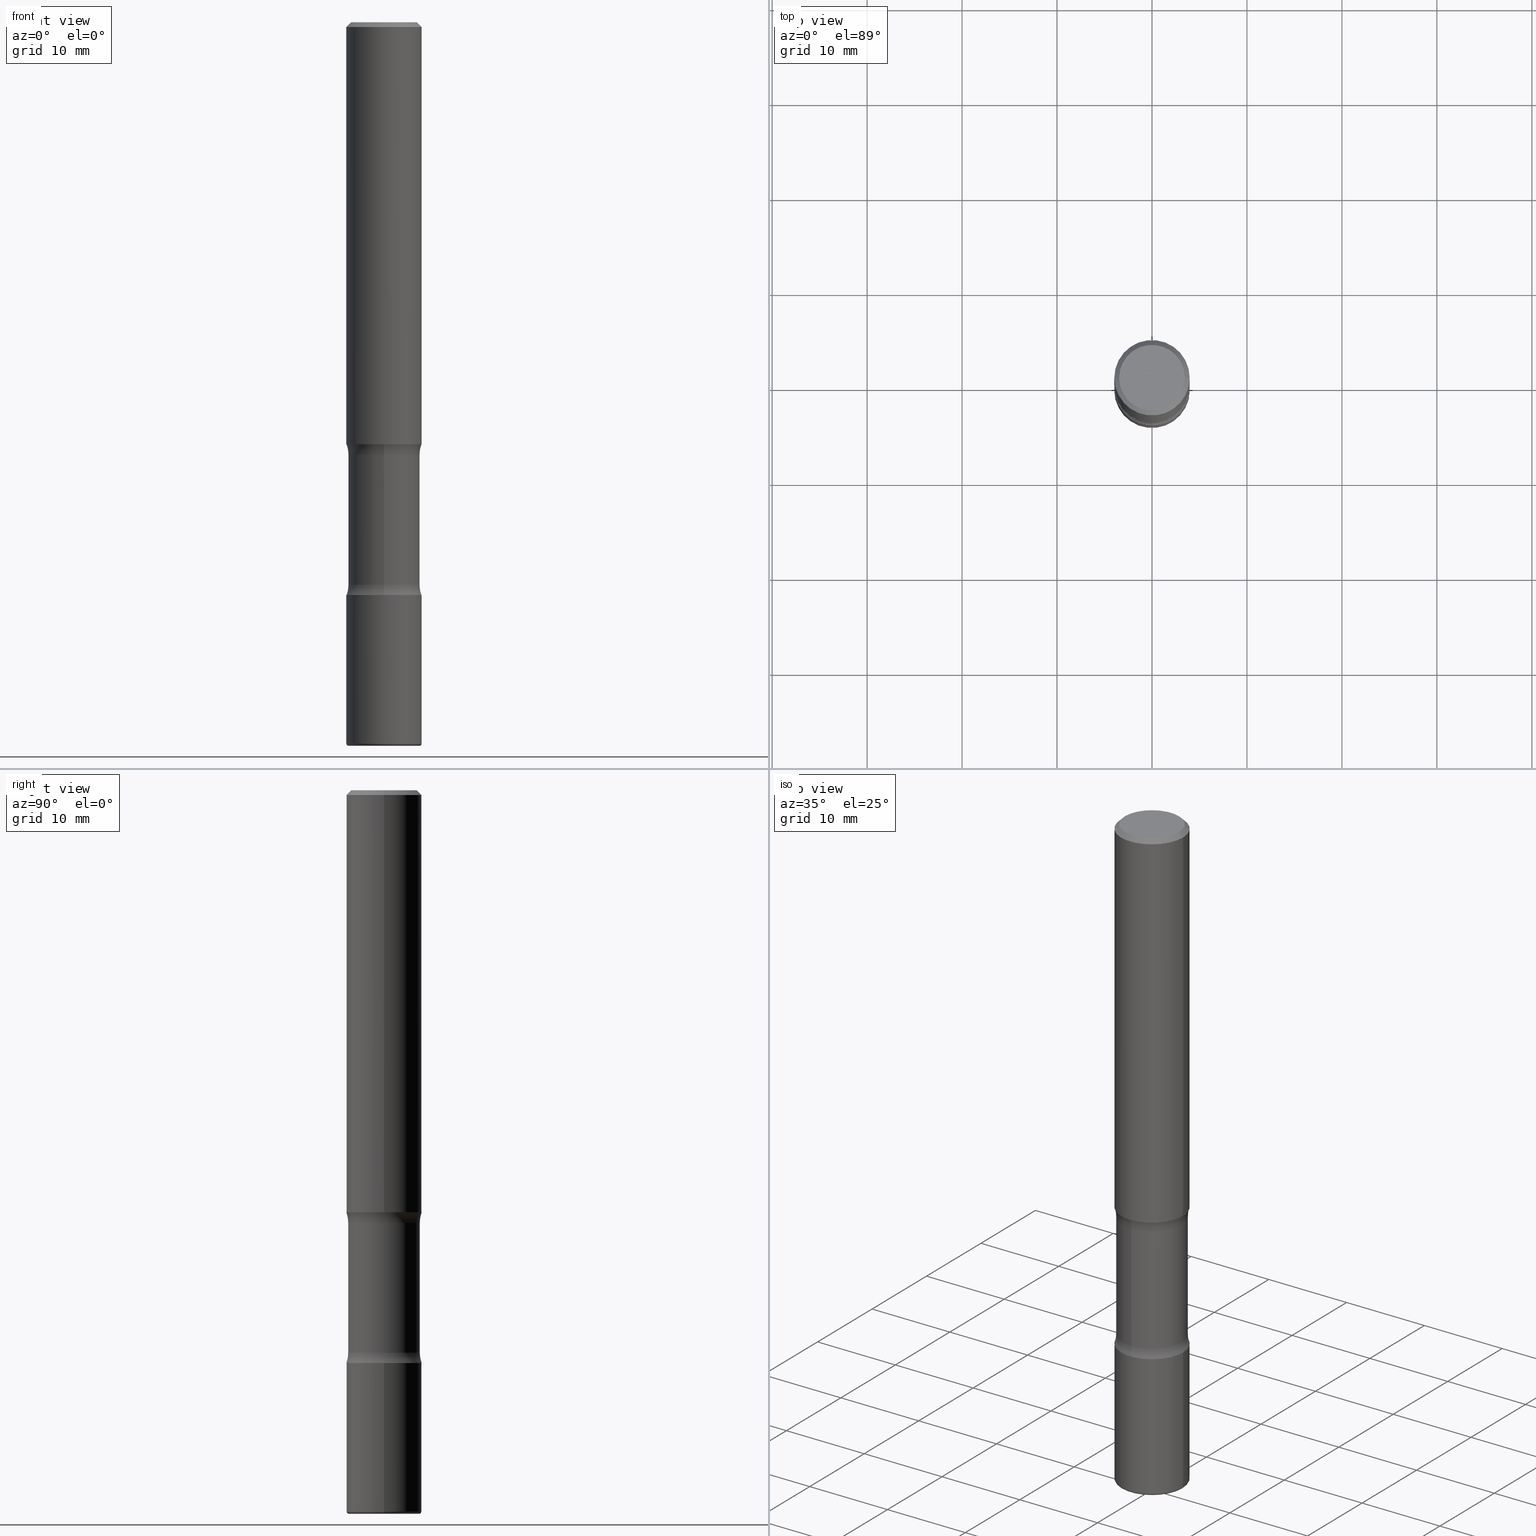
[diagram: canonical four-view strip — front | top / right | iso, engineering-drawing reading convention]
A machine part, canonical four-view strip (front | top / right | iso — engineering-drawing reading convention). The complete STEP part file that produces these views, byte-faithful:
ISO-10303-21;
HEADER;
FILE_DESCRIPTION (( 'STEP AP203' ),
    '1' );
FILE_NAME ('37811.STEP',
    '2024-03-02T00:26:25',
    ( '' ),
    ( '' ),
    'SwSTEP 2.0',
    'SolidWorks 2023',
    '' );
FILE_SCHEMA (( 'CONFIG_CONTROL_DESIGN' ));
ENDSEC;

DATA;
#1 = VERTEX_POINT ( 'NONE', #132 ) ;
#2 = DIRECTION ( 'NONE',  ( 2.523926373086038410E-29, -3.379125637513666367E-15, -1.000000000000000000 ) ) ;
#3 = ORIENTED_EDGE ( 'NONE', *, *, #169, .T. ) ;
#4 = CIRCLE ( 'NONE', #14, 0.1462500000000001021 ) ;
#5 = APPROVAL_PERSON_ORGANIZATION ( #45, #89, #177 ) ;
#6 = DIRECTION ( 'NONE',  ( 6.982962677686265922E-15, 1.000000000000000000, -3.379125637513666761E-15 ) ) ;
#7 = VERTEX_POINT ( 'NONE', #357 ) ;
#8 = VERTEX_POINT ( 'NONE', #50 ) ;
#9 = PLANE ( 'NONE',  #422 ) ;
#10 = ORIENTED_EDGE ( 'NONE', *, *, #334, .F. ) ;
#11 = ADVANCED_FACE ( 'NONE', ( #267 ), #397, .T. ) ;
#12 = DIRECTION ( 'NONE',  ( -2.445468806185136597E-29, 3.491481338843145583E-15, 1.000000000000000000 ) ) ;
#13 = ADVANCED_FACE ( 'NONE', ( #444 ), #309, .F. ) ;
#14 = AXIS2_PLACEMENT_3D ( 'NONE', #407, #174, #530 ) ;
#15 = APPROVAL_STATUS ( 'not_yet_approved' ) ;
#16 = ORIENTED_EDGE ( 'NONE', *, *, #265, .T. ) ;
#17 = CARTESIAN_POINT ( 'NONE',  ( 0.1562500000000000833, -7.201180261363985422E-15, -1.750000000000000444 ) ) ;
#18 = FACE_OUTER_BOUND ( 'NONE', #172, .T. ) ;
#19 = CYLINDRICAL_SURFACE ( 'NONE', #443, 0.1484375000000000000 ) ;
#20 = ADVANCED_FACE ( 'NONE', ( #230 ), #358, .T. ) ;
#21 = CIRCLE ( 'NONE', #327, 0.1362499999999998712 ) ;
#22 = AXIS2_PLACEMENT_3D ( 'NONE', #151, #114, #363 ) ;
#23 = DIRECTION ( 'NONE',  ( 2.523926373086038130E-29, -3.379125637513666367E-15, -1.000000000000000000 ) ) ;
#24 = AXIS2_PLACEMENT_3D ( 'NONE', #510, #319, #508 ) ;
#25 = FACE_OUTER_BOUND ( 'NONE', #254, .T. ) ;
#26 = DIRECTION ( 'NONE',  ( -2.523926373086038130E-29, 3.379125637513666367E-15, 1.000000000000000000 ) ) ;
#27 = CARTESIAN_POINT ( 'NONE',  ( -0.1562500000000000833, -1.979737960251025472E-15, -1.750000000000000444 ) ) ;
#28 = EDGE_CURVE ( 'NONE', #324, #432, #30, .T. ) ;
#29 = DIRECTION ( 'NONE',  ( -6.982962677686265922E-15, -1.000000000000000000, 0.000000000000000000 ) ) ;
#30 = CIRCLE ( 'NONE', #395, 0.1484375000000000278 ) ;
#31 = CARTESIAN_POINT ( 'NONE',  ( -1.071952812151760391E-15, -0.1562500000000063560, -1.750000000000000000 ) ) ;
#32 = ORIENTED_EDGE ( 'NONE', *, *, #301, .F. ) ;
#33 = DIMENSIONAL_EXPONENTS ( 1.000000000000000000, 0.000000000000000000, 0.000000000000000000, 0.000000000000000000, 0.000000000000000000, 0.000000000000000000, 0.000000000000000000 ) ;
#34 = APPROVAL ( #199, 'UNSPECIFIED' ) ;
#35 = CIRCLE ( 'NONE', #415, 0.1562500000000001110 ) ;
#36 = AXIS2_PLACEMENT_3D ( 'NONE', #377, #2, #290 ) ;
#37 = ORIENTED_EDGE ( 'NONE', *, *, #399, .F. ) ;
#38 = CALENDAR_DATE ( 2024, 1, 3 ) ;
#39 = ORIENTED_EDGE ( 'NONE', *, *, #169, .F. ) ;
#40 = ORIENTED_EDGE ( 'NONE', *, *, #482, .F. ) ;
#41 = APPROVAL_STATUS ( 'not_yet_approved' ) ;
#42 = EDGE_LOOP ( 'NONE', ( #287, #428, #10, #116 ) ) ;
#43 = AXIS2_PLACEMENT_3D ( 'NONE', #222, #306, #52 ) ;
#44 = CIRCLE ( 'NONE', #546, 0.1362499999999998712 ) ;
#45 = PERSON_AND_ORGANIZATION ( #493, #351 ) ;
#46 = EDGE_LOOP ( 'NONE', ( #90, #115 ) ) ;
#47 = EDGE_CURVE ( 'NONE', #384, #168, #21, .T. ) ;
#48 = DIRECTION ( 'NONE',  ( 1.000000000000000000, -6.982962677686266711E-15, 4.876176775795936353E-29 ) ) ;
#49 = DIRECTION ( 'NONE',  ( -1.000000000000000000, 6.982962677686265922E-15, -4.876176775795935793E-29 ) ) ;
#50 = CARTESIAN_POINT ( 'NONE',  ( 1.091087918388522561E-15, 0.1562499999999940048, -1.750000000000001110 ) ) ;
#51 = ADVANCED_FACE ( 'NONE', ( #429 ), #195, .T. ) ;
#52 = DIRECTION ( 'NONE',  ( 6.982962677686266711E-15, 1.000000000000000000, -3.496765431890253370E-15 ) ) ;
#53 = DIRECTION ( 'NONE',  ( 1.000000000000000000, -6.982962677686265133E-15, 0.000000000000000000 ) ) ;
#54 = AXIS2_PLACEMENT_3D ( 'NONE', #492, #266, #442 ) ;
#55 = AXIS2_PLACEMENT_3D ( 'NONE', #264, #88, #487 ) ;
#56 = DIRECTION ( 'NONE',  ( 1.000000000000000000, -6.982962677686265922E-15, 4.876176775795935793E-29 ) ) ;
#57 = EDGE_CURVE ( 'NONE', #481, #515, #87, .T. ) ;
#58 = CARTESIAN_POINT ( 'NONE',  ( -0.1562499999999998612, 1.021258291611615284E-15, -0.02000000000000000042 ) ) ;
#59 = CIRCLE ( 'NONE', #130, 0.1562500000000000833 ) ;
#60 = DIRECTION ( 'NONE',  ( 6.982962677686265922E-15, 1.000000000000000000, -3.379125637513666761E-15 ) ) ;
#61 = ADVANCED_FACE ( 'NONE', ( #18 ), #413, .T. ) ;
#62 = DIRECTION ( 'NONE',  ( 6.982962677686266711E-15, 1.000000000000000000, -3.680805717779217644E-15 ) ) ;
#63 = CARTESIAN_POINT ( 'NONE',  ( 7.336406418555412032E-29, -1.047444401652943951E-14, -3.000000000000000888 ) ) ;
#64 = ADVANCED_FACE ( 'NONE', ( #175 ), #554, .F. ) ;
#65 = CARTESIAN_POINT ( 'NONE',  ( 7.385442397868472267E-29, -1.040422170319851125E-14, -2.999999999999999556 ) ) ;
#66 = AXIS2_PLACEMENT_3D ( 'NONE', #473, #438, #48 ) ;
#67 = LOCAL_TIME ( 19, 26, 25.00000000000000000, #229 ) ;
#68 = DIRECTION ( 'NONE',  ( 2.523926373086038410E-29, -3.379125637513666367E-15, -1.000000000000000000 ) ) ;
#69 =( LENGTH_UNIT ( ) NAMED_UNIT ( * ) SI_UNIT ( $, .METRE. ) );
#70 = DIRECTION ( 'NONE',  ( 2.523926373086038410E-29, -3.379125637513666367E-15, -1.000000000000000000 ) ) ;
#71 = APPLICATION_PROTOCOL_DEFINITION ( 'international standard', 'config_control_design', 1994, #490 ) ;
#72 = FACE_OUTER_BOUND ( 'NONE', #92, .T. ) ;
#73 = PERSON_AND_ORGANIZATION_ROLE ( 'design_owner' ) ;
#74 = ORIENTED_EDGE ( 'NONE', *, *, #247, .T. ) ;
#75 = CLOSED_SHELL ( 'NONE', ( #311, #227, #51, #345, #20, #207 ) ) ;
#76 = CC_DESIGN_PERSON_AND_ORGANIZATION_ASSIGNMENT ( #524, #73, ( #536 ) ) ;
#77 = CIRCLE ( 'NONE', #556, 0.1250000000000000000 ) ;
#78 = ORIENTED_EDGE ( 'NONE', *, *, #470, .T. ) ;
#79 = ORIENTED_EDGE ( 'NONE', *, *, #356, .F. ) ;
#80 = EDGE_CURVE ( 'NONE', #261, #515, #308, .T. ) ;
#81 = ORIENTED_EDGE ( 'NONE', *, *, #47, .F. ) ;
#82 = CARTESIAN_POINT ( 'NONE',  ( 5.698202263795362163E-29, -8.145282435205020267E-15, -2.331501840915390478 ) ) ;
#83 = ORIENTED_EDGE ( 'NONE', *, *, #495, .T. ) ;
#84 = PERSON_AND_ORGANIZATION_ROLE ( 'creator' ) ;
#85 = CARTESIAN_POINT ( 'NONE',  ( 0.000000000000000000, 0.000000000000000000, 0.000000000000000000 ) ) ;
#86 = CARTESIAN_POINT ( 'NONE',  ( -1.875917421265609774E-15, -0.2734375000000063838, -1.793498159084609522 ) ) ;
#87 = CIRCLE ( 'NONE', #150, 0.1562499999999998612 ) ;
#88 = DIRECTION ( 'NONE',  ( -2.445468806185136597E-29, 3.491481338843145583E-15, 1.000000000000000000 ) ) ;
#89 = APPROVAL ( #15, 'UNSPECIFIED' ) ;
#90 = ORIENTED_EDGE ( 'NONE', *, *, #105, .F. ) ;
#91 = DIRECTION ( 'NONE',  ( -2.445468806185136597E-29, 3.491481338843145583E-15, 1.000000000000000000 ) ) ;
#92 = EDGE_LOOP ( 'NONE', ( #16, #212, #32, #126 ) ) ;
#93 = EDGE_LOOP ( 'NONE', ( #341, #161, #390, #354 ) ) ;
#94 = VECTOR ( 'NONE', #534, 39.37007874015748143 ) ;
#95 = AXIS2_PLACEMENT_3D ( 'NONE', #505, #70, #104 ) ;
#96 = DIRECTION ( 'NONE',  ( -2.445468806185136597E-29, 3.491481338843145583E-15, 1.000000000000000000 ) ) ;
#97 = DIRECTION ( 'NONE',  ( 1.000000000000000000, -6.982962677686265133E-15, 0.000000000000000000 ) ) ;
#98 = CARTESIAN_POINT ( 'NONE',  ( 0.1562499999999998612, -1.141782438928663922E-15, -0.02000000000000000042 ) ) ;
#99 = AXIS2_PLACEMENT_3D ( 'NONE', #100, #317, #419 ) ;
#100 = CARTESIAN_POINT ( 'NONE',  ( -0.1462500000000000744, -9.400360452091861401E-15, -2.990000000000000657 ) ) ;
#101 = EDGE_CURVE ( 'NONE', #432, #8, #163, .T. ) ;
#102 = UNCERTAINTY_MEASURE_WITH_UNIT (LENGTH_MEASURE( 1.000000000000000082E-05 ), #249, 'distance_accuracy_value', 'NONE');
#103 = CARTESIAN_POINT ( 'NONE',  ( -1.018355171544137761E-15, -0.1484375000000104083, -2.999999999999999112 ) ) ;
#104 = DIRECTION ( 'NONE',  ( 6.982962677686265133E-15, 1.000000000000000000, -3.680805717779217644E-15 ) ) ;
#105 = EDGE_CURVE ( 'NONE', #430, #437, #498, .T. ) ;
#106 = DIRECTION ( 'NONE',  ( -2.445468806185136597E-29, 3.491481338843145583E-15, 1.000000000000000000 ) ) ;
#107 = FACE_OUTER_BOUND ( 'NONE', #215, .T. ) ;
#108 = CIRCLE ( 'NONE', #529, 0.1562500000000001388 ) ;
#109 = CC_DESIGN_SECURITY_CLASSIFICATION ( #110, ( #417 ) ) ;
#110 = SECURITY_CLASSIFICATION ( '', '', #173 ) ;
#111 = APPROVAL_DATE_TIME ( #559, #34 ) ;
#112 = ORIENTED_EDGE ( 'NONE', *, *, #276, .T. ) ;
#113 = CARTESIAN_POINT ( 'NONE',  ( 1.091087918388537746E-15, 0.1562499999999918121, -2.375000000000000888 ) ) ;
#114 = DIRECTION ( 'NONE',  ( -2.445468806185136597E-29, 3.491481338843145583E-15, 1.000000000000000000 ) ) ;
#115 = ORIENTED_EDGE ( 'NONE', *, *, #186, .F. ) ;
#116 = ORIENTED_EDGE ( 'NONE', *, *, #128, .F. ) ;
#117 = DIRECTION ( 'NONE',  ( 6.982962677686266711E-15, 1.000000000000000000, -3.496765431890253370E-15 ) ) ;
#118 = ORIENTED_EDGE ( 'NONE', *, *, #101, .T. ) ;
#119 = ADVANCED_FACE ( 'NONE', ( #467 ), #355, .F. ) ;
#120 = AXIS2_PLACEMENT_3D ( 'NONE', #86, #398, #179 ) ;
#121 = LOCAL_TIME ( 19, 26, 25.00000000000000000, #553 ) ;
#122 = EDGE_LOOP ( 'NONE', ( #518, #251, #297, #198 ) ) ;
#123 = ORIENTED_EDGE ( 'NONE', *, *, #399, .T. ) ;
#124 = ORIENTED_EDGE ( 'NONE', *, *, #446, .F. ) ;
#125 = COORDINATED_UNIVERSAL_TIME_OFFSET ( 5, 0, .BEHIND. ) ;
#126 = ORIENTED_EDGE ( 'NONE', *, *, #80, .F. ) ;
#127 = DIRECTION ( 'NONE',  ( -1.000000000000000000, 6.982962677686266711E-15, 0.000000000000000000 ) ) ;
#128 = EDGE_CURVE ( 'NONE', #430, #517, #462, .T. ) ;
#129 = PLANE ( 'NONE',  #520 ) ;
#130 = AXIS2_PLACEMENT_3D ( 'NONE', #491, #91, #53 ) ;
#131 = DATE_AND_TIME ( #219, #329 ) ;
#132 = CARTESIAN_POINT ( 'NONE',  ( 0.1562500000000001110, -9.383356098140953236E-15, -2.375000000000000444 ) ) ;
#133 = PERSON_AND_ORGANIZATION ( #493, #351 ) ;
#134 = CC_DESIGN_DATE_AND_TIME_ASSIGNMENT ( #480, #431, ( #393 ) ) ;
#135 = CARTESIAN_POINT ( 'NONE',  ( 0.000000000000000000, 0.000000000000000000, 0.000000000000000000 ) ) ;
#136 = DIRECTION ( 'NONE',  ( -6.982962677686265922E-15, -1.000000000000000000, 0.000000000000000000 ) ) ;
#137 = VECTOR ( 'NONE', #374, 39.37007874015748143 ) ;
#138 = PERSON_AND_ORGANIZATION ( #493, #351 ) ;
#139 = AXIS2_PLACEMENT_3D ( 'NONE', #452, #371, #149 ) ;
#140 = ORIENTED_EDGE ( 'NONE', *, *, #57, .T. ) ;
#141 = DIRECTION ( 'NONE',  ( 6.982962677686266711E-15, 1.000000000000000000, -3.680805717779217644E-15 ) ) ;
#142 = DIRECTION ( 'NONE',  ( -1.000000000000000000, 6.982962677686265922E-15, -4.883557194083112340E-29 ) ) ;
#143 = EDGE_CURVE ( 'NONE', #472, #253, #281, .T. ) ;
#144 = CARTESIAN_POINT ( 'NONE',  ( -0.1562500000000001110, -8.255675666821583237E-15, -2.375000000000000444 ) ) ;
#145 = DIRECTION ( 'NONE',  ( 1.000000000000000000, -6.860497997771530774E-15, 4.842174840124134267E-29 ) ) ;
#146 = VECTOR ( 'NONE', #192, 39.37007874015748143 ) ;
#147 = DIRECTION ( 'NONE',  ( 0.7071067811865473507, -7.319954787623256045E-15, -0.7071067811865476838 ) ) ;
#148 = DIRECTION ( 'NONE',  ( -2.445468806185136597E-29, 3.491481338843145583E-15, 1.000000000000000000 ) ) ;
#149 = DIRECTION ( 'NONE',  ( 6.982962677686265922E-15, 1.000000000000000000, -3.496765431890254553E-15 ) ) ;
#150 = AXIS2_PLACEMENT_3D ( 'NONE', #305, #12, #262 ) ;
#151 = CARTESIAN_POINT ( 'NONE',  ( 7.311951730493559366E-29, -1.043952920314100786E-14, -2.990000000000000657 ) ) ;
#152 = AXIS2_PLACEMENT_3D ( 'NONE', #65, #241, #62 ) ;
#153 = AXIS2_PLACEMENT_3D ( 'NONE', #82, #160, #333 ) ;
#154 = ORIENTED_EDGE ( 'NONE', *, *, #550, .T. ) ;
#155 = LINE ( 'NONE', #201, #137 ) ;
#156 = EDGE_CURVE ( 'NONE', #555, #517, #108, .T. ) ;
#157 = ORIENTED_EDGE ( 'NONE', *, *, #320, .F. ) ;
#158 = ORIENTED_EDGE ( 'NONE', *, *, #404, .T. ) ;
#159 = ADVANCED_FACE ( 'NONE', ( #270 ), #19, .T. ) ;
#160 = DIRECTION ( 'NONE',  ( 2.523926373086038410E-29, -3.379125637513666367E-15, -1.000000000000000000 ) ) ;
#161 = ORIENTED_EDGE ( 'NONE', *, *, #28, .T. ) ;
#162 = EDGE_LOOP ( 'NONE', ( #124, #478, #288, #300 ) ) ;
#163 = CIRCLE ( 'NONE', #497, 0.1250000000000000000 ) ;
#164 = AXIS2_PLACEMENT_3D ( 'NONE', #321, #68, #277 ) ;
#165 = CIRCLE ( 'NONE', #273, 0.1562500000000001665 ) ;
#166 = EDGE_LOOP ( 'NONE', ( #485, #158, #340, #40 ) ) ;
#167 = APPROVAL_DATE_TIME ( #421, #502 ) ;
#168 = VERTEX_POINT ( 'NONE', #314 ) ;
#169 = EDGE_CURVE ( 'NONE', #392, #261, #486, .T. ) ;
#170 = ORIENTED_EDGE ( 'NONE', *, *, #28, .F. ) ;
#171 = CARTESIAN_POINT ( 'NONE',  ( -1.045153991847949569E-15, -0.1484375000000081601, -2.331501840915390034 ) ) ;
#172 = EDGE_LOOP ( 'NONE', ( #157, #81, #208, #140 ) ) ;
#173 = SECURITY_CLASSIFICATION_LEVEL ( 'unclassified' ) ;
#174 = DIRECTION ( 'NONE',  ( -2.445468806185136597E-29, 3.491481338843145583E-15, 1.000000000000000000 ) ) ;
#175 = FACE_OUTER_BOUND ( 'NONE', #525, .T. ) ;
#176 = AXIS2_PLACEMENT_3D ( 'NONE', #535, #315, #501 ) ;
#177 = APPROVAL_ROLE ( '' ) ;
#178 = DIRECTION ( 'NONE',  ( -2.445468806185136597E-29, 3.491481338843145583E-15, 1.000000000000000000 ) ) ;
#179 = DIRECTION ( 'NONE',  ( 6.860497997771530774E-15, 1.000000000000000000, 0.000000000000000000 ) ) ;
#180 = CARTESIAN_POINT ( 'NONE',  ( 1.909403857179882138E-15, 0.2734374999999937272, -1.793498159084611077 ) ) ;
#181 = EDGE_CURVE ( 'NONE', #384, #481, #451, .T. ) ;
#182 = ORIENTED_EDGE ( 'NONE', *, *, #47, .T. ) ;
#183 = APPLICATION_CONTEXT ( 'configuration controlled 3d designs of mechanical parts and assemblies' ) ;
#184 = DIRECTION ( 'NONE',  ( 2.523926373086038410E-29, -3.379125637513666367E-15, -1.000000000000000000 ) ) ;
#185 = ORIENTED_EDGE ( 'NONE', *, *, #533, .F. ) ;
#186 = EDGE_CURVE ( 'NONE', #437, #430, #4, .T. ) ;
#187 = CC_DESIGN_APPROVAL ( #34, ( #393 ) ) ;
#188 = CARTESIAN_POINT ( 'NONE',  ( 5.807988414689700538E-29, -8.292268179752471696E-15, -2.375000000000000444 ) ) ;
#189 = PRODUCT_RELATED_PRODUCT_CATEGORY ( 'detail', '', ( #536 ) ) ;
#190 = CARTESIAN_POINT ( 'NONE',  ( -0.1362499999999998712, 9.863434782231840290E-16, -6.775751096333132877E-30 ) ) ;
#191 = DIRECTION ( 'NONE',  ( -6.982962677686266711E-15, -1.000000000000000000, 3.491481338843145583E-15 ) ) ;
#192 = DIRECTION ( 'NONE',  ( 2.523926373086038410E-29, -3.379125637513666367E-15, -1.000000000000000000 ) ) ;
#193 = TOROIDAL_SURFACE ( 'NONE', #55, 0.1462500000000000744, 0.01000000000000011470 ) ;
#194 = DIRECTION ( 'NONE',  ( 6.982962677686265922E-15, 1.000000000000000000, -3.379125637513666367E-15 ) ) ;
#195 = PLANE ( 'NONE',  #336 ) ;
#196 = CARTESIAN_POINT ( 'NONE',  ( 7.311951730493559366E-29, -1.043952920314100786E-14, -2.990000000000000657 ) ) ;
#197 = CARTESIAN_POINT ( 'NONE',  ( -1.071952812151744220E-15, -0.1562500000000084099, -2.375000000000000000 ) ) ;
#198 = ORIENTED_EDGE ( 'NONE', *, *, #408, .F. ) ;
#199 = APPROVAL_STATUS ( 'not_yet_approved' ) ;
#200 = CARTESIAN_POINT ( 'NONE',  ( 5.807988414689700538E-29, -8.292268179752471696E-15, -2.375000000000000444 ) ) ;
#201 = CARTESIAN_POINT ( 'NONE',  ( -0.1562499999999999722, 1.110223024625156343E-15, -7.685836078523288357E-30 ) ) ;
#202 = ADVANCED_BREP_SHAPE_REPRESENTATION ( '37811', ( #326, #537, #557, #228 ), #361 ) ;
#203 = CLOSED_SHELL ( 'NONE', ( #307, #459, #61, #214, #13, #11 ) ) ;
#204 = CARTESIAN_POINT ( 'NONE',  ( 4.230534431510926007E-29, -6.180314656306430561E-15, -1.750000000000000444 ) ) ;
#205 = AXIS2_PLACEMENT_3D ( 'NONE', #63, #412, #376 ) ;
#206 = APPROVAL_PERSON_ORGANIZATION ( #284, #502, #298 ) ;
#207 = ADVANCED_FACE ( 'NONE', ( #260 ), #9, .F. ) ;
#208 = ORIENTED_EDGE ( 'NONE', *, *, #181, .T. ) ;
#209 = DIRECTION ( 'NONE',  ( -2.445468806185136597E-29, 3.491481338843145583E-15, 1.000000000000000000 ) ) ;
#210 = ORIENTED_EDGE ( 'NONE', *, *, #156, .T. ) ;
#211 = CARTESIAN_POINT ( 'NONE',  ( 0.1562500000000001665, -1.153061712152948940E-14, -2.990000000000000657 ) ) ;
#212 = ORIENTED_EDGE ( 'NONE', *, *, #283, .T. ) ;
#213 = COORDINATED_UNIVERSAL_TIME_OFFSET ( 5, 0, .BEHIND. ) ;
#214 = ADVANCED_FACE ( 'NONE', ( #527 ), #129, .F. ) ;
#215 = EDGE_LOOP ( 'NONE', ( #170, #112, #74, #378 ) ) ;
#216 = AXIS2_PLACEMENT_3D ( 'NONE', #330, #209, #513 ) ;
#217 = CC_DESIGN_APPROVAL ( #502, ( #417 ) ) ;
#218 = ORIENTED_EDGE ( 'NONE', *, *, #325, .F. ) ;
#219 = CALENDAR_DATE ( 2024, 1, 3 ) ;
#220 = DIRECTION ( 'NONE',  ( 2.438088387897960049E-29, -3.491481338843145188E-15, -1.000000000000000000 ) ) ;
#221 = ORIENTED_EDGE ( 'NONE', *, *, #247, .F. ) ;
#222 = CARTESIAN_POINT ( 'NONE',  ( 4.230534431510926007E-29, -6.180314656306430561E-15, -1.750000000000000444 ) ) ;
#223 = CC_DESIGN_PERSON_AND_ORGANIZATION_ASSIGNMENT ( #133, #84, ( #417 ) ) ;
#224 = FACE_OUTER_BOUND ( 'NONE', #42, .T. ) ;
#225 = CARTESIAN_POINT ( 'NONE',  ( 0.1562499999999999722, -1.091087918388478976E-15, 7.619026212181148976E-30 ) ) ;
#226 = VECTOR ( 'NONE', #439, 39.37007874015748143 ) ;
#227 = ADVANCED_FACE ( 'NONE', ( #224 ), #193, .T. ) ;
#228 = AXIS2_PLACEMENT_3D ( 'NONE', #337, #285, #468 ) ;
#229 = COORDINATED_UNIVERSAL_TIME_OFFSET ( 5, 0, .BEHIND. ) ;
#230 = FACE_OUTER_BOUND ( 'NONE', #232, .T. ) ;
#231 = DIRECTION ( 'NONE',  ( -6.982962677686265922E-15, -1.000000000000000000, 3.379125637513666367E-15 ) ) ;
#232 = EDGE_LOOP ( 'NONE', ( #381, #210, #484, #471 ) ) ;
#233 = ORIENTED_EDGE ( 'NONE', *, *, #265, .F. ) ;
#234 = CARTESIAN_POINT ( 'NONE',  ( 4.338252820539708503E-29, -6.330261553535058631E-15, -1.793498159084610410 ) ) ;
#235 = EDGE_CURVE ( 'NONE', #432, #7, #441, .T. ) ;
#236 = AXIS2_PLACEMENT_3D ( 'NONE', #445, #488, #127 ) ;
#237 = CIRCLE ( 'NONE', #405, 0.1562500000000001110 ) ;
#238 = TOROIDAL_SURFACE ( 'NONE', #24, 0.2734375000000000000, 0.1250000000000000000 ) ;
#239 = DIRECTION ( 'NONE',  ( -0.7071067811865473507, 2.468850131082255088E-15, -0.7071067811865476838 ) ) ;
#240 = CARTESIAN_POINT ( 'NONE',  ( 1.909403857179895154E-15, 0.2734374999999918399, -2.331501840915391366 ) ) ;
#241 = DIRECTION ( 'NONE',  ( 2.523926373086038410E-29, -3.379125637513666367E-15, -1.000000000000000000 ) ) ;
#242 = CARTESIAN_POINT ( 'NONE',  ( -0.1562500000000001388, 1.110223024625157526E-15, -7.685836078523296765E-30 ) ) ;
#243 = CARTESIAN_POINT ( 'NONE',  ( 0.000000000000000000, 0.000000000000000000, 0.000000000000000000 ) ) ;
#244 = AXIS2_PLACEMENT_3D ( 'NONE', #243, #106, #551 ) ;
#245 = DIRECTION ( 'NONE',  ( -2.445468806185136597E-29, 3.491481338843145583E-15, 1.000000000000000000 ) ) ;
#246 = PERSON_AND_ORGANIZATION ( #493, #351 ) ;
#247 = EDGE_CURVE ( 'NONE', #448, #8, #367, .T. ) ;
#248 = EDGE_LOOP ( 'NONE', ( #182, #123 ) ) ;
#249 =( CONVERSION_BASED_UNIT ( 'INCH', #373 ) LENGTH_UNIT ( ) NAMED_UNIT ( #33 ) );
#250 = AXIS2_PLACEMENT_3D ( 'NONE', #455, #370, #509 ) ;
#251 = ORIENTED_EDGE ( 'NONE', *, *, #143, .T. ) ;
#252 = PERSON_AND_ORGANIZATION_ROLE ( 'creator' ) ;
#253 = VERTEX_POINT ( 'NONE', #171 ) ;
#254 = EDGE_LOOP ( 'NONE', ( #185, #221 ) ) ;
#255 = CARTESIAN_POINT ( 'NONE',  ( 4.338252820539708503E-29, -6.330261553535058631E-15, -1.793498159084610410 ) ) ;
#256 = EDGE_LOOP ( 'NONE', ( #426, #476 ) ) ;
#257 = ORIENTED_EDGE ( 'NONE', *, *, #325, .T. ) ;
#258 = TOROIDAL_SURFACE ( 'NONE', #22, 0.1462500000000000744, 0.01000000000000011470 ) ;
#259 = ORIENTED_EDGE ( 'NONE', *, *, #495, .F. ) ;
#260 = FACE_OUTER_BOUND ( 'NONE', #256, .T. ) ;
#261 = VERTEX_POINT ( 'NONE', #17 ) ;
#262 = DIRECTION ( 'NONE',  ( 1.000000000000000000, -6.982962677686266711E-15, 0.000000000000000000 ) ) ;
#263 = PERSON_AND_ORGANIZATION_ROLE ( 'design_supplier' ) ;
#264 = CARTESIAN_POINT ( 'NONE',  ( 7.311951730493559366E-29, -1.043952920314100786E-14, -2.990000000000000657 ) ) ;
#265 = EDGE_CURVE ( 'NONE', #261, #392, #59, .T. ) ;
#266 = DIRECTION ( 'NONE',  ( 2.523926373086038410E-29, -3.379125637513666367E-15, -1.000000000000000000 ) ) ;
#267 = FACE_OUTER_BOUND ( 'NONE', #433, .T. ) ;
#268 = CIRCLE ( 'NONE', #164, 0.1484375000000000278 ) ;
#269 = CARTESIAN_POINT ( 'NONE',  ( 4.279570410823989605E-29, -6.110092342975506249E-15, -1.750000000000000444 ) ) ;
#270 = FACE_OUTER_BOUND ( 'NONE', #286, .T. ) ;
#271 = CARTESIAN_POINT ( 'NONE',  ( 0.1562500000000001388, -1.091087918388480160E-15, 7.619026212181157383E-30 ) ) ;
#272 = VECTOR ( 'NONE', #147, 39.37007874015748143 ) ;
#273 = AXIS2_PLACEMENT_3D ( 'NONE', #204, #383, #117 ) ;
#274 = DIRECTION ( 'NONE',  ( -2.445468806185136597E-29, 3.491481338843145583E-15, 1.000000000000000000 ) ) ;
#275 = DIRECTION ( 'NONE',  ( -2.445468806185136877E-29, 3.491481338843145188E-15, 1.000000000000000000 ) ) ;
#276 = EDGE_CURVE ( 'NONE', #324, #448, #375, .T. ) ;
#277 = DIRECTION ( 'NONE',  ( 6.982962677686265133E-15, 1.000000000000000000, -3.680805717779216855E-15 ) ) ;
#278 = CARTESIAN_POINT ( 'NONE',  ( 5.807988414689700538E-29, -8.292268179752471696E-15, -2.375000000000000444 ) ) ;
#279 = CARTESIAN_POINT ( 'NONE',  ( 0.1562499999999998612, -1.141782438928663922E-15, -0.02000000000000000042 ) ) ;
#280 = VECTOR ( 'NONE', #275, 39.37007874015748143 ) ;
#281 = CIRCLE ( 'NONE', #474, 0.1250000000000000000 ) ;
#282 = CARTESIAN_POINT ( 'NONE',  ( 1.036533522469098602E-15, 0.1484374999999936995, -1.793498159084610633 ) ) ;
#283 = EDGE_CURVE ( 'NONE', #392, #481, #155, .T. ) ;
#284 = PERSON_AND_ORGANIZATION ( #493, #351 ) ;
#285 = DIRECTION ( 'NONE',  ( 0.000000000000000000, 0.000000000000000000, 1.000000000000000000 ) ) ;
#286 = EDGE_LOOP ( 'NONE', ( #257, #78, #79, #424 ) ) ;
#287 = ORIENTED_EDGE ( 'NONE', *, *, #105, .T. ) ;
#288 = ORIENTED_EDGE ( 'NONE', *, *, #128, .T. ) ;
#289 = AXIS2_PLACEMENT_3D ( 'NONE', #494, #401, #56 ) ;
#290 = DIRECTION ( 'NONE',  ( 6.982962677686265922E-15, 1.000000000000000000, -3.496765431890254553E-15 ) ) ;
#291 = AXIS2_PLACEMENT_3D ( 'NONE', #500, #191, #450 ) ;
#292 = ORIENTED_EDGE ( 'NONE', *, *, #301, .T. ) ;
#293 = LOCAL_TIME ( 19, 26, 25.00000000000000000, #213 ) ;
#294 = DIRECTION ( 'NONE',  ( 6.982962677686265133E-15, 1.000000000000000000, -3.680805717779216855E-15 ) ) ;
#295 = CC_DESIGN_PERSON_AND_ORGANIZATION_ASSIGNMENT ( #138, #263, ( #417 ) ) ;
#296 = PERSON_AND_ORGANIZATION ( #493, #351 ) ;
#297 = ORIENTED_EDGE ( 'NONE', *, *, #523, .T. ) ;
#298 = APPROVAL_ROLE ( '' ) ;
#299 = ORIENTED_EDGE ( 'NONE', *, *, #80, .T. ) ;
#300 = ORIENTED_EDGE ( 'NONE', *, *, #156, .F. ) ;
#301 = EDGE_CURVE ( 'NONE', #515, #481, #434, .T. ) ;
#302 = CARTESIAN_POINT ( 'NONE',  ( 9.514286648347529716E-16, 0.1362499999999998712, -4.757143324173781621E-16 ) ) ;
#303 = TOROIDAL_SURFACE ( 'NONE', #454, 0.2734375000000000555, 0.1250000000000000000 ) ;
#304 = VERTEX_POINT ( 'NONE', #113 ) ;
#305 = CARTESIAN_POINT ( 'NONE',  ( 4.890937612370273159E-31, -6.982962677686291609E-17, -0.02000000000000000042 ) ) ;
#306 = DIRECTION ( 'NONE',  ( 2.523926373086038410E-29, -3.379125637513666367E-15, -1.000000000000000000 ) ) ;
#307 = ADVANCED_FACE ( 'NONE', ( #72 ), #332, .T. ) ;
#308 = LINE ( 'NONE', #225, #94 ) ;
#309 = PLANE ( 'NONE',  #289 ) ;
#310 = DIRECTION ( 'NONE',  ( 6.860497997771530774E-15, 1.000000000000000000, 0.000000000000000000 ) ) ;
#311 = ADVANCED_FACE ( 'NONE', ( #548 ), #368, .T. ) ;
#312 = AXIS2_PLACEMENT_3D ( 'NONE', #549, #23, #194 ) ;
#313 = AXIS2_PLACEMENT_3D ( 'NONE', #255, #466, #6 ) ;
#314 = CARTESIAN_POINT ( 'NONE',  ( 0.1362499999999998712, -1.038262645562517138E-15, 6.957025900226689470E-30 ) ) ;
#315 = DIRECTION ( 'NONE',  ( -2.445468806185136597E-29, 3.491481338843145583E-15, 1.000000000000000000 ) ) ;
#316 = CYLINDRICAL_SURFACE ( 'NONE', #152, 0.1484375000000000000 ) ;
#317 = DIRECTION ( 'NONE',  ( 7.105427357601001859E-15, 1.000000000000000000, -3.491481338843145583E-15 ) ) ;
#318 = CIRCLE ( 'NONE', #95, 0.1484375000000000000 ) ;
#319 = DIRECTION ( 'NONE',  ( 2.523926373086038410E-29, -3.379125637513666367E-15, -1.000000000000000000 ) ) ;
#320 = EDGE_CURVE ( 'NONE', #168, #515, #463, .T. ) ;
#321 = CARTESIAN_POINT ( 'NONE',  ( 4.340320582405264943E-29, -6.327300400853882778E-15, -1.793498159084609966 ) ) ;
#322 = LINE ( 'NONE', #103, #146 ) ;
#323 = FACE_OUTER_BOUND ( 'NONE', #122, .T. ) ;
#324 = VERTEX_POINT ( 'NONE', #372 ) ;
#325 = EDGE_CURVE ( 'NONE', #432, #324, #268, .T. ) ;
#326 = MANIFOLD_SOLID_BREP ( 'Body-Move/Copy2[1]', #75 ) ;
#327 = AXIS2_PLACEMENT_3D ( 'NONE', #85, #477, #410 ) ;
#328 = VECTOR ( 'NONE', #239, 39.37007874015748143 ) ;
#329 = LOCAL_TIME ( 19, 26, 25.00000000000000000, #394 ) ;
#330 = CARTESIAN_POINT ( 'NONE',  ( 4.890937612370273159E-31, -6.982962677686291609E-17, -0.02000000000000000042 ) ) ;
#331 = CARTESIAN_POINT ( 'NONE',  ( -0.1562500000000001665, -9.329306178515849742E-15, -2.990000000000000657 ) ) ;
#332 = CYLINDRICAL_SURFACE ( 'NONE', #66, 0.1562499999999999722 ) ;
#333 = DIRECTION ( 'NONE',  ( 6.982962677686265133E-15, 1.000000000000000000, -3.680805717779217644E-15 ) ) ;
#334 = EDGE_CURVE ( 'NONE', #517, #555, #338, .T. ) ;
#335 = EDGE_LOOP ( 'NONE', ( #83, #154 ) ) ;
#336 = AXIS2_PLACEMENT_3D ( 'NONE', #449, #350, #389 ) ;
#337 = CARTESIAN_POINT ( 'NONE',  ( 0.000000000000000000, 0.000000000000000000, 0.000000000000000000 ) ) ;
#338 = CIRCLE ( 'NONE', #359, 0.1562500000000001388 ) ;
#339 = CIRCLE ( 'NONE', #139, 0.1562500000000001110 ) ;
#340 = ORIENTED_EDGE ( 'NONE', *, *, #382, .F. ) ;
#341 = ORIENTED_EDGE ( 'NONE', *, *, #470, .F. ) ;
#342 = ORIENTED_EDGE ( 'NONE', *, *, #408, .T. ) ;
#343 = DIRECTION ( 'NONE',  ( -1.000000000000000000, 6.982962677686265922E-15, -4.876176775795935793E-29 ) ) ;
#344 = ORIENTED_EDGE ( 'NONE', *, *, #143, .F. ) ;
#345 = ADVANCED_FACE ( 'NONE', ( #420 ), #258, .T. ) ;
#346 = PERSON_AND_ORGANIZATION ( #493, #351 ) ;
#347 = CARTESIAN_POINT ( 'NONE',  ( 5.807988414689700538E-29, -8.292268179752471696E-15, -2.375000000000000444 ) ) ;
#348 = CIRCLE ( 'NONE', #99, 0.01000000000000013205 ) ;
#349 = ORIENTED_EDGE ( 'NONE', *, *, #57, .F. ) ;
#350 = DIRECTION ( 'NONE',  ( 2.438088387897960049E-29, -3.491481338843145188E-15, -1.000000000000000000 ) ) ;
#351 = ORGANIZATION ( 'UNSPECIFIED', 'UNSPECIFIED', '' ) ;
#352 = DIRECTION ( 'NONE',  ( 1.000000000000000000, -6.982962677686266711E-15, 4.876176775795936353E-29 ) ) ;
#353 = DIRECTION ( 'NONE',  ( -1.000000000000000000, 6.982962677686265922E-15, -4.883557194083112340E-29 ) ) ;
#354 = ORIENTED_EDGE ( 'NONE', *, *, #523, .F. ) ;
#355 = PLANE ( 'NONE',  #387 ) ;
#356 = EDGE_CURVE ( 'NONE', #7, #253, #318, .T. ) ;
#357 = CARTESIAN_POINT ( 'NONE',  ( 1.036533522469112013E-15, 0.1484374999999918399, -2.331501840915391366 ) ) ;
#358 = CYLINDRICAL_SURFACE ( 'NONE', #176, 0.1562500000000001388 ) ;
#359 = AXIS2_PLACEMENT_3D ( 'NONE', #196, #460, #416 ) ;
#360 = CC_DESIGN_APPROVAL ( #89, ( #110 ) ) ;
#361 =( GEOMETRIC_REPRESENTATION_CONTEXT ( 3 ) GLOBAL_UNCERTAINTY_ASSIGNED_CONTEXT ( ( #102 ) ) GLOBAL_UNIT_ASSIGNED_CONTEXT ( ( #249, #521, #475 ) ) REPRESENTATION_CONTEXT ( 'NONE', 'WORKASPACE' ) );
#362 = DIRECTION ( 'NONE',  ( 1.000000000000000000, -6.982962677686270655E-15, 0.000000000000000000 ) ) ;
#363 = DIRECTION ( 'NONE',  ( 1.000000000000000000, -6.982962677686265922E-15, 4.883557194083112340E-29 ) ) ;
#364 = LINE ( 'NONE', #242, #280 ) ;
#365 = ADVANCED_FACE ( 'NONE', ( #465 ), #316, .T. ) ;
#366 = CARTESIAN_POINT ( 'NONE',  ( -0.1562499999999998612, 1.021258291611615284E-15, -0.02000000000000000042 ) ) ;
#367 = CIRCLE ( 'NONE', #43, 0.1562500000000001665 ) ;
#368 = CYLINDRICAL_SURFACE ( 'NONE', #244, 0.1562500000000001388 ) ;
#369 = LOCAL_TIME ( 19, 26, 25.00000000000000000, #125 ) ;
#370 = DIRECTION ( 'NONE',  ( 2.445468806185136597E-29, -3.491481338843145583E-15, -1.000000000000000000 ) ) ;
#371 = DIRECTION ( 'NONE',  ( 2.523926373086038410E-29, -3.379125637513666367E-15, -1.000000000000000000 ) ) ;
#372 = CARTESIAN_POINT ( 'NONE',  ( -1.045153991847964360E-15, -0.1484375000000063560, -1.793498159084609522 ) ) ;
#373 = LENGTH_MEASURE_WITH_UNIT ( LENGTH_MEASURE( 0.02539999999999999897 ), #69 );
#374 = DIRECTION ( 'NONE',  ( -2.445468806185136877E-29, 3.491481338843145188E-15, 1.000000000000000000 ) ) ;
#375 = CIRCLE ( 'NONE', #120, 0.1250000000000000000 ) ;
#376 = DIRECTION ( 'NONE',  ( 1.000000000000000000, -6.982962677686266711E-15, 0.000000000000000000 ) ) ;
#377 = CARTESIAN_POINT ( 'NONE',  ( 5.807988414689700538E-29, -8.292268179752471696E-15, -2.375000000000000444 ) ) ;
#378 = ORIENTED_EDGE ( 'NONE', *, *, #101, .F. ) ;
#379 = ORIENTED_EDGE ( 'NONE', *, *, #181, .F. ) ;
#380 = CALENDAR_DATE ( 2024, 1, 3 ) ;
#381 = ORIENTED_EDGE ( 'NONE', *, *, #404, .F. ) ;
#382 = EDGE_CURVE ( 'NONE', #1, #385, #237, .T. ) ;
#383 = DIRECTION ( 'NONE',  ( 2.523926373086038410E-29, -3.379125637513666367E-15, -1.000000000000000000 ) ) ;
#384 = VERTEX_POINT ( 'NONE', #190 ) ;
#385 = VERTEX_POINT ( 'NONE', #144 ) ;
#386 = CALENDAR_DATE ( 2024, 1, 3 ) ;
#387 = AXIS2_PLACEMENT_3D ( 'NONE', #200, #26, #231 ) ;
#388 = ORIENTED_EDGE ( 'NONE', *, *, #283, .F. ) ;
#389 = DIRECTION ( 'NONE',  ( -1.000000000000000000, 6.982962677686265922E-15, -4.876176775795935793E-29 ) ) ;
#390 = ORIENTED_EDGE ( 'NONE', *, *, #235, .T. ) ;
#391 = DIRECTION ( 'NONE',  ( 2.438088387897960049E-29, -3.491481338843145188E-15, -1.000000000000000000 ) ) ;
#392 = VERTEX_POINT ( 'NONE', #27 ) ;
#393 = PRODUCT_DEFINITION ( 'UNKNOWN', '', #417, #456 ) ;
#394 = COORDINATED_UNIVERSAL_TIME_OFFSET ( 5, 0, .BEHIND. ) ;
#395 = AXIS2_PLACEMENT_3D ( 'NONE', #541, #414, #294 ) ;
#396 = CONICAL_SURFACE ( 'NONE', #250, 0.1562499999999998612, 0.7853981633974480570 ) ;
#397 = CYLINDRICAL_SURFACE ( 'NONE', #519, 0.1562499999999999722 ) ;
#398 = DIRECTION ( 'NONE',  ( 1.000000000000000000, -6.860497997771530774E-15, 4.842174840124134267E-29 ) ) ;
#399 = EDGE_CURVE ( 'NONE', #168, #384, #44, .T. ) ;
#400 = DIRECTION ( 'NONE',  ( 1.000000000000000000, -6.982962677686269077E-15, 0.000000000000000000 ) ) ;
#401 = DIRECTION ( 'NONE',  ( -2.438088387897960049E-29, 3.491481338843145188E-15, 1.000000000000000000 ) ) ;
#402 = DIRECTION ( 'NONE',  ( -2.445468806185136597E-29, 3.491481338843145583E-15, 1.000000000000000000 ) ) ;
#403 = PLANE ( 'NONE',  #312 ) ;
#404 = EDGE_CURVE ( 'NONE', #555, #385, #364, .T. ) ;
#405 = AXIS2_PLACEMENT_3D ( 'NONE', #278, #274, #506 ) ;
#406 = CIRCLE ( 'NONE', #153, 0.1484375000000000000 ) ;
#407 = CARTESIAN_POINT ( 'NONE',  ( 7.336406418555412032E-29, -1.047444401652943951E-14, -3.000000000000000888 ) ) ;
#408 = EDGE_CURVE ( 'NONE', #304, #7, #77, .T. ) ;
#409 = CARTESIAN_POINT ( 'NONE',  ( -0.1462500000000001021, -9.382290721998072185E-15, -3.000000000000000888 ) ) ;
#410 = DIRECTION ( 'NONE',  ( 1.000000000000000000, -6.982962677686266711E-15, 4.876176775795936353E-29 ) ) ;
#411 = DIRECTION ( 'NONE',  ( 2.523926373086038410E-29, -3.379125637513666367E-15, -1.000000000000000000 ) ) ;
#412 = DIRECTION ( 'NONE',  ( -2.445468806185136597E-29, 3.491481338843145583E-15, 1.000000000000000000 ) ) ;
#413 = CONICAL_SURFACE ( 'NONE', #236, 0.1562499999999998612, 0.7853981633974480570 ) ;
#414 = DIRECTION ( 'NONE',  ( 2.523926373086038410E-29, -3.379125637513666367E-15, -1.000000000000000000 ) ) ;
#415 = AXIS2_PLACEMENT_3D ( 'NONE', #188, #148, #362 ) ;
#416 = DIRECTION ( 'NONE',  ( 1.000000000000000000, -6.982962677686269077E-15, 0.000000000000000000 ) ) ;
#417 = PRODUCT_DEFINITION_FORMATION_WITH_SPECIFIED_SOURCE ( 'ANY', '', #536, .NOT_KNOWN. ) ;
#418 = ADVANCED_FACE ( 'NONE', ( #461 ), #303, .F. ) ;
#419 = DIRECTION ( 'NONE',  ( -1.000000000000000000, 7.105427357601027102E-15, 0.000000000000000000 ) ) ;
#420 = FACE_OUTER_BOUND ( 'NONE', #162, .T. ) ;
#421 = DATE_AND_TIME ( #386, #293 ) ;
#422 = AXIS2_PLACEMENT_3D ( 'NONE', #347, #220, #343 ) ;
#423 = APPROVAL_ROLE ( '' ) ;
#424 = ORIENTED_EDGE ( 'NONE', *, *, #235, .F. ) ;
#425 = ADVANCED_FACE ( 'NONE', ( #25 ), #403, .F. ) ;
#426 = ORIENTED_EDGE ( 'NONE', *, *, #382, .T. ) ;
#427 = MECHANICAL_CONTEXT ( 'NONE', #183, 'mechanical' ) ;
#428 = ORIENTED_EDGE ( 'NONE', *, *, #446, .T. ) ;
#429 = FACE_OUTER_BOUND ( 'NONE', #46, .T. ) ;
#430 = VERTEX_POINT ( 'NONE', #457 ) ;
#431 = DATE_TIME_ROLE ( 'creation_date' ) ;
#432 = VERTEX_POINT ( 'NONE', #282 ) ;
#433 = EDGE_LOOP ( 'NONE', ( #388, #3, #299, #349 ) ) ;
#434 = CIRCLE ( 'NONE', #216, 0.1562499999999998612 ) ;
#435 = DATE_AND_TIME ( #532, #67 ) ;
#436 = EDGE_CURVE ( 'NONE', #385, #1, #35, .T. ) ;
#437 = VERTEX_POINT ( 'NONE', #409 ) ;
#438 = DIRECTION ( 'NONE',  ( -2.445468806185136597E-29, 3.491481338843145583E-15, 1.000000000000000000 ) ) ;
#439 = DIRECTION ( 'NONE',  ( 2.523926373086038410E-29, -3.379125637513666367E-15, -1.000000000000000000 ) ) ;
#440 = SHAPE_DEFINITION_REPRESENTATION ( #539, #202 ) ;
#441 = LINE ( 'NONE', #489, #226 ) ;
#442 = DIRECTION ( 'NONE',  ( 6.982962677686265922E-15, 1.000000000000000000, -3.379125637513666761E-15 ) ) ;
#443 = AXIS2_PLACEMENT_3D ( 'NONE', #503, #184, #141 ) ;
#444 = FACE_OUTER_BOUND ( 'NONE', #558, .T. ) ;
#445 = CARTESIAN_POINT ( 'NONE',  ( 4.890937612370273159E-31, -6.982962677686291609E-17, -0.02000000000000000042 ) ) ;
#446 = EDGE_CURVE ( 'NONE', #437, #555, #348, .T. ) ;
#447 = APPROVAL_DATE_TIME ( #435, #89 ) ;
#448 = VERTEX_POINT ( 'NONE', #31 ) ;
#449 = CARTESIAN_POINT ( 'NONE',  ( -8.316018263183792163E-29, -3.288960704146697258E-14, -3.000000000000000444 ) ) ;
#450 = DIRECTION ( 'NONE',  ( 1.000000000000000000, -6.982962677686239889E-15, 0.000000000000000000 ) ) ;
#451 = LINE ( 'NONE', #58, #328 ) ;
#452 = CARTESIAN_POINT ( 'NONE',  ( 5.807988414689700538E-29, -8.292268179752471696E-15, -2.375000000000000444 ) ) ;
#453 = CC_DESIGN_DATE_AND_TIME_ASSIGNMENT ( #131, #526, ( #110 ) ) ;
#454 = AXIS2_PLACEMENT_3D ( 'NONE', #234, #411, #60 ) ;
#455 = CARTESIAN_POINT ( 'NONE',  ( 4.890937612370273159E-31, -6.982962677686291609E-17, -0.02000000000000000042 ) ) ;
#456 = DESIGN_CONTEXT ( 'detailed design', #490, 'design' ) ;
#457 = CARTESIAN_POINT ( 'NONE',  ( 0.1462500000000001021, -1.149570230814105617E-14, -3.000000000000000888 ) ) ;
#458 = EDGE_LOOP ( 'NONE', ( #37, #469, #292, #379 ) ) ;
#459 = ADVANCED_FACE ( 'NONE', ( #504 ), #396, .T. ) ;
#460 = DIRECTION ( 'NONE',  ( -2.445468806185136597E-29, 3.491481338843145583E-15, 1.000000000000000000 ) ) ;
#461 = FACE_OUTER_BOUND ( 'NONE', #560, .T. ) ;
#462 = CIRCLE ( 'NONE', #291, 0.01000000000000013205 ) ;
#463 = LINE ( 'NONE', #279, #272 ) ;
#464 = APPROVAL_PERSON_ORGANIZATION ( #246, #34, #423 ) ;
#465 = FACE_OUTER_BOUND ( 'NONE', #93, .T. ) ;
#466 = DIRECTION ( 'NONE',  ( 2.523926373086038410E-29, -3.379125637513666367E-15, -1.000000000000000000 ) ) ;
#467 = FACE_OUTER_BOUND ( 'NONE', #335, .T. ) ;
#468 = DIRECTION ( 'NONE',  ( 1.000000000000000000, 0.000000000000000000, 0.000000000000000000 ) ) ;
#469 = ORIENTED_EDGE ( 'NONE', *, *, #320, .T. ) ;
#470 = EDGE_CURVE ( 'NONE', #324, #253, #322, .T. ) ;
#471 = ORIENTED_EDGE ( 'NONE', *, *, #436, .F. ) ;
#472 = VERTEX_POINT ( 'NONE', #197 ) ;
#473 = CARTESIAN_POINT ( 'NONE',  ( 0.000000000000000000, 0.000000000000000000, 0.000000000000000000 ) ) ;
#474 = AXIS2_PLACEMENT_3D ( 'NONE', #542, #145, #310 ) ;
#475 =( NAMED_UNIT ( * ) SI_UNIT ( $, .STERADIAN. ) SOLID_ANGLE_UNIT ( ) );
#476 = ORIENTED_EDGE ( 'NONE', *, *, #436, .T. ) ;
#477 = DIRECTION ( 'NONE',  ( -2.445468806185136597E-29, 3.491481338843145583E-15, 1.000000000000000000 ) ) ;
#478 = ORIENTED_EDGE ( 'NONE', *, *, #186, .T. ) ;
#479 = ORIENTED_EDGE ( 'NONE', *, *, #356, .T. ) ;
#480 = DATE_AND_TIME ( #38, #121 ) ;
#481 = VERTEX_POINT ( 'NONE', #366 ) ;
#482 = EDGE_CURVE ( 'NONE', #517, #1, #538, .T. ) ;
#483 = PERSON_AND_ORGANIZATION_ROLE ( 'classification_officer' ) ;
#484 = ORIENTED_EDGE ( 'NONE', *, *, #482, .T. ) ;
#485 = ORIENTED_EDGE ( 'NONE', *, *, #334, .T. ) ;
#486 = CIRCLE ( 'NONE', #511, 0.1562500000000000833 ) ;
#487 = DIRECTION ( 'NONE',  ( 1.000000000000000000, -6.982962677686265922E-15, 4.883557194083112340E-29 ) ) ;
#488 = DIRECTION ( 'NONE',  ( 2.445468806185136597E-29, -3.491481338843145583E-15, -1.000000000000000000 ) ) ;
#489 = CARTESIAN_POINT ( 'NONE',  ( 1.036533522469128973E-15, 0.1484374999999896194, -3.000000000000000444 ) ) ;
#490 = APPLICATION_CONTEXT ( 'configuration controlled 3d designs of mechanical parts and assemblies' ) ;
#491 = CARTESIAN_POINT ( 'NONE',  ( 4.279570410823989605E-29, -6.110092342975506249E-15, -1.750000000000000444 ) ) ;
#492 = CARTESIAN_POINT ( 'NONE',  ( 5.701615023521807970E-29, -8.140395169034527718E-15, -2.331501840915390478 ) ) ;
#493 = PERSON ( 'UNSPECIFIED', 'UNSPECIFIED', 'UNSPECIFIED', ('UNSPECIFIED'), ('UNSPECIFIED'), ('UNSPECIFIED') ) ;
#494 = CARTESIAN_POINT ( 'NONE',  ( 4.279570410823989605E-29, -6.110092342975506249E-15, -1.750000000000000444 ) ) ;
#495 = EDGE_CURVE ( 'NONE', #304, #472, #339, .T. ) ;
#496 = CARTESIAN_POINT ( 'NONE',  ( 7.311951730493559366E-29, -1.043952920314100786E-14, -2.990000000000000657 ) ) ;
#497 = AXIS2_PLACEMENT_3D ( 'NONE', #180, #353, #136 ) ;
#498 = CIRCLE ( 'NONE', #205, 0.1462500000000001021 ) ;
#499 = CIRCLE ( 'NONE', #36, 0.1562500000000001110 ) ;
#500 = CARTESIAN_POINT ( 'NONE',  ( 0.1462500000000000744, -1.146078749475262610E-14, -2.990000000000000657 ) ) ;
#501 = DIRECTION ( 'NONE',  ( 1.000000000000000000, -6.982962677686266711E-15, 4.876176775795936353E-29 ) ) ;
#502 = APPROVAL ( #41, 'UNSPECIFIED' ) ;
#503 = CARTESIAN_POINT ( 'NONE',  ( 7.385442397868472267E-29, -1.040422170319851125E-14, -2.999999999999999556 ) ) ;
#504 = FACE_OUTER_BOUND ( 'NONE', #458, .T. ) ;
#505 = CARTESIAN_POINT ( 'NONE',  ( 5.698202263795362163E-29, -8.145282435205020267E-15, -2.331501840915390478 ) ) ;
#506 = DIRECTION ( 'NONE',  ( 1.000000000000000000, -6.982962677686270655E-15, 0.000000000000000000 ) ) ;
#507 = VECTOR ( 'NONE', #544, 39.37007874015748143 ) ;
#508 = DIRECTION ( 'NONE',  ( 6.982962677686265922E-15, 1.000000000000000000, -3.379125637513666761E-15 ) ) ;
#509 = DIRECTION ( 'NONE',  ( -1.000000000000000000, 6.982962677686266711E-15, 0.000000000000000000 ) ) ;
#510 = CARTESIAN_POINT ( 'NONE',  ( 5.701615023521807970E-29, -8.140395169034527718E-15, -2.331501840915390478 ) ) ;
#511 = AXIS2_PLACEMENT_3D ( 'NONE', #269, #402, #97 ) ;
#512 = ADVANCED_FACE ( 'NONE', ( #323 ), #238, .F. ) ;
#513 = DIRECTION ( 'NONE',  ( 1.000000000000000000, -6.982962677686266711E-15, 0.000000000000000000 ) ) ;
#514 = ADVANCED_FACE ( 'NONE', ( #107 ), #547, .F. ) ;
#515 = VERTEX_POINT ( 'NONE', #98 ) ;
#516 = APPLICATION_PROTOCOL_DEFINITION ( 'international standard', 'config_control_design', 1994, #183 ) ;
#517 = VERTEX_POINT ( 'NONE', #211 ) ;
#518 = ORIENTED_EDGE ( 'NONE', *, *, #550, .F. ) ;
#519 = AXIS2_PLACEMENT_3D ( 'NONE', #135, #178, #352 ) ;
#520 = AXIS2_PLACEMENT_3D ( 'NONE', #302, #391, #49 ) ;
#521 =( NAMED_UNIT ( * ) PLANE_ANGLE_UNIT ( ) SI_UNIT ( $, .RADIAN. ) );
#522 = ORIENTED_EDGE ( 'NONE', *, *, #533, .T. ) ;
#523 = EDGE_CURVE ( 'NONE', #253, #7, #406, .T. ) ;
#524 = PERSON_AND_ORGANIZATION ( #493, #351 ) ;
#525 = EDGE_LOOP ( 'NONE', ( #344, #259, #342, #479 ) ) ;
#526 = DATE_TIME_ROLE ( 'classification_date' ) ;
#527 = FACE_OUTER_BOUND ( 'NONE', #248, .T. ) ;
#528 = CC_DESIGN_PERSON_AND_ORGANIZATION_ASSIGNMENT ( #346, #483, ( #110 ) ) ;
#529 = AXIS2_PLACEMENT_3D ( 'NONE', #496, #96, #400 ) ;
#530 = DIRECTION ( 'NONE',  ( 1.000000000000000000, -6.982962677686266711E-15, 0.000000000000000000 ) ) ;
#531 = ORIENTED_EDGE ( 'NONE', *, *, #276, .F. ) ;
#532 = CALENDAR_DATE ( 2024, 1, 3 ) ;
#533 = EDGE_CURVE ( 'NONE', #8, #448, #165, .T. ) ;
#534 = DIRECTION ( 'NONE',  ( -2.445468806185136877E-29, 3.491481338843145188E-15, 1.000000000000000000 ) ) ;
#535 = CARTESIAN_POINT ( 'NONE',  ( 0.000000000000000000, 0.000000000000000000, 0.000000000000000000 ) ) ;
#536 = PRODUCT ( '37811', '37811', '', ( #427 ) ) ;
#537 = MANIFOLD_SOLID_BREP ( 'Body-Move/Copy2[2]', #203 ) ;
#538 = LINE ( 'NONE', #271, #507 ) ;
#539 = PRODUCT_DEFINITION_SHAPE ( 'NONE', 'NONE',  #393 ) ;
#540 = CARTESIAN_POINT ( 'NONE',  ( 0.000000000000000000, 0.000000000000000000, 0.000000000000000000 ) ) ;
#541 = CARTESIAN_POINT ( 'NONE',  ( 4.340320582405264943E-29, -6.327300400853882778E-15, -1.793498159084609966 ) ) ;
#542 = CARTESIAN_POINT ( 'NONE',  ( -1.875917421265595575E-15, -0.2734375000000081046, -2.331501840915390034 ) ) ;
#543 = CC_DESIGN_PERSON_AND_ORGANIZATION_ASSIGNMENT ( #296, #252, ( #393 ) ) ;
#544 = DIRECTION ( 'NONE',  ( -2.445468806185136877E-29, 3.491481338843145188E-15, 1.000000000000000000 ) ) ;
#545 = CLOSED_SHELL ( 'NONE', ( #159, #512, #514, #418, #425, #119, #64, #365 ) ) ;
#546 = AXIS2_PLACEMENT_3D ( 'NONE', #540, #245, #552 ) ;
#547 = TOROIDAL_SURFACE ( 'NONE', #313, 0.2734375000000000555, 0.1250000000000000000 ) ;
#548 = FACE_OUTER_BOUND ( 'NONE', #166, .T. ) ;
#549 = CARTESIAN_POINT ( 'NONE',  ( 4.279570410823989605E-29, -6.110092342975506249E-15, -1.750000000000000444 ) ) ;
#550 = EDGE_CURVE ( 'NONE', #472, #304, #499, .T. ) ;
#551 = DIRECTION ( 'NONE',  ( 1.000000000000000000, -6.982962677686266711E-15, 4.876176775795936353E-29 ) ) ;
#552 = DIRECTION ( 'NONE',  ( 1.000000000000000000, -6.982962677686266711E-15, 4.876176775795936353E-29 ) ) ;
#553 = COORDINATED_UNIVERSAL_TIME_OFFSET ( 5, 0, .BEHIND. ) ;
#554 = TOROIDAL_SURFACE ( 'NONE', #54, 0.2734375000000000000, 0.1250000000000000000 ) ;
#555 = VERTEX_POINT ( 'NONE', #331 ) ;
#556 = AXIS2_PLACEMENT_3D ( 'NONE', #240, #142, #29 ) ;
#557 = MANIFOLD_SOLID_BREP ( 'Body-Move/Copy2[4]', #545 ) ;
#558 = EDGE_LOOP ( 'NONE', ( #233, #39 ) ) ;
#559 = DATE_AND_TIME ( #380, #369 ) ;
#560 = EDGE_LOOP ( 'NONE', ( #531, #218, #118, #522 ) ) ;
ENDSEC;
END-ISO-10303-21;
